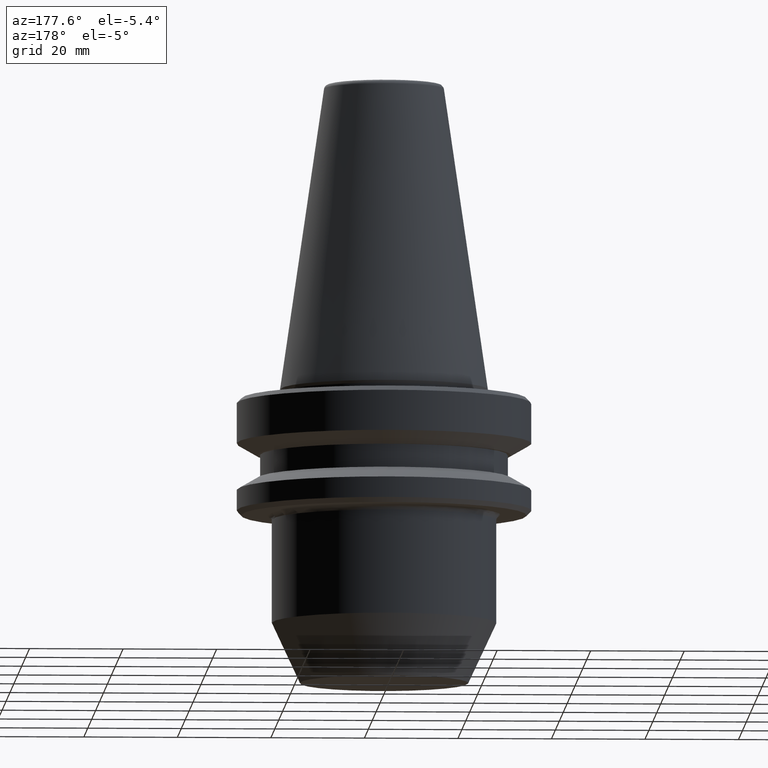
[diagram: clean part render]
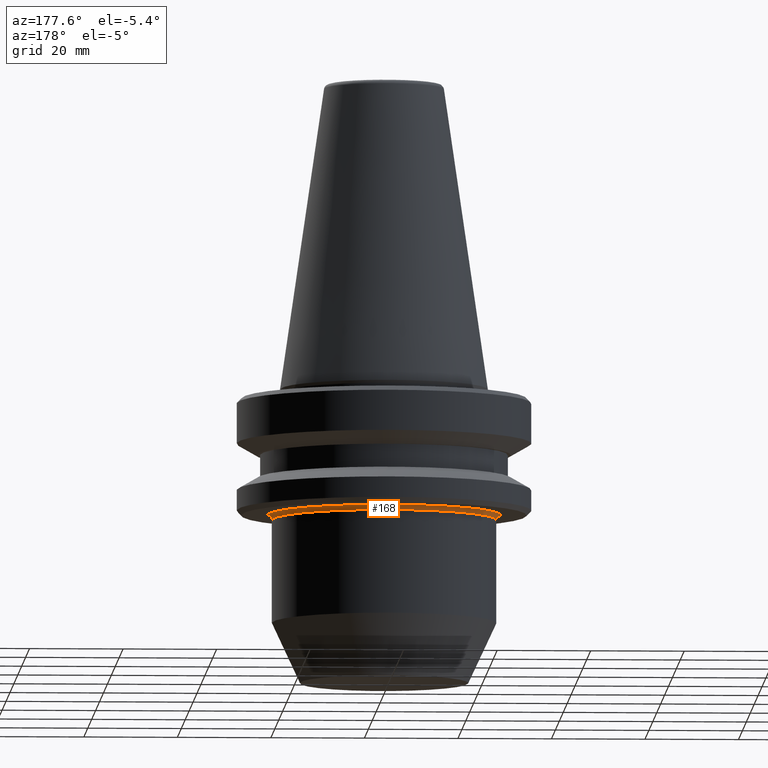
[diagram: same view with one face highlighted and labeled with its STEP entity id]
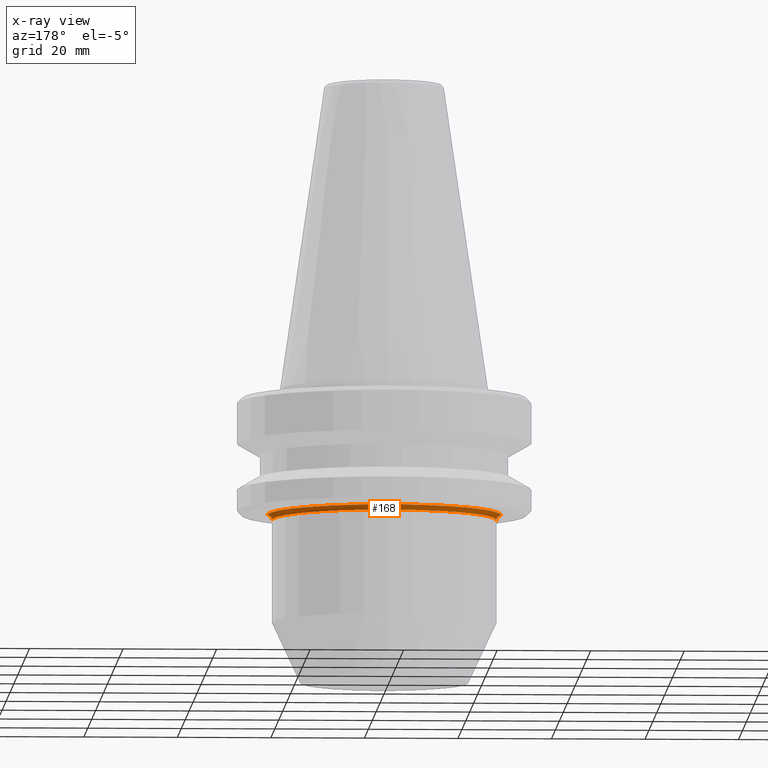
[diagram: x-ray of the same camera — body ghosted, the highlighted face saturated]
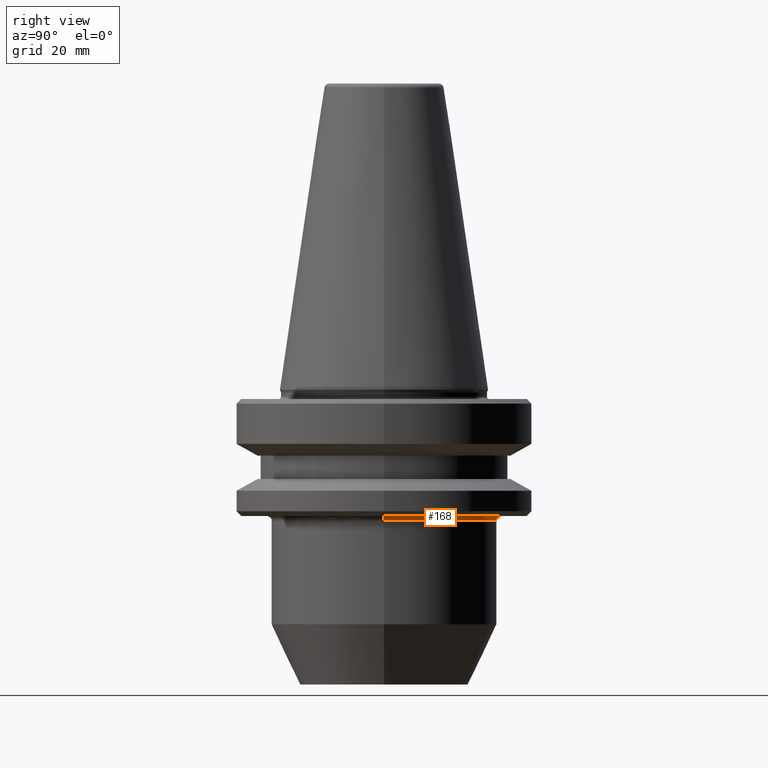
[diagram: same view with one face highlighted and labeled with its STEP entity id]
A machine part, auxiliary view. The second image highlights one B-rep face of the part: STEP entity #168.
The next image is the same camera in x-ray: the body ghosted, the highlighted face saturated — about 0% of this face is hidden behind the body in this view.
A second angle (right view) of the same face is appended — the face is thin or edge-on in the first view.
In plain terms, the highlighted toroidal blend (fillet) surface has major radius 25 mm and minor (blend) radius 1 mm.
Its self-contained STEP definition (entity closure, byte-faithful):
#36 = ORIENTED_EDGE ( 'NONE', *, *, #713, .F. ) ;
#51 = CARTESIAN_POINT ( 'NONE',  ( 25.00000000000000000, 0.0000000000000000000, -27.31128678844368800 ) ) ;
#61 = EDGE_CURVE ( 'NONE', #819, #943, #352, .T. ) ;
#87 = ORIENTED_EDGE ( 'NONE', *, *, #61, .T. ) ;
#108 = DIRECTION ( 'NONE',  ( -0.0000000000000000000, -0.0000000000000000000, 1.000000000000000000 ) ) ;
#160 = AXIS2_PLACEMENT_3D ( 'NONE', #767, #463, #992 ) ;
#168 = ADVANCED_FACE ( 'NONE', ( #722 ), #501, .F. ) ;
#174 = ORIENTED_EDGE ( 'NONE', *, *, #469, .F. ) ;
#195 = AXIS2_PLACEMENT_3D ( 'NONE', #553, #471, #613 ) ;
#198 = AXIS2_PLACEMENT_3D ( 'NONE', #51, #955, #971 ) ;
#320 = AXIS2_PLACEMENT_3D ( 'NONE', #566, #716, #459 ) ;
#325 = VERTEX_POINT ( 'NONE', #683 ) ;
#352 = CIRCLE ( 'NONE', #198, 1.000000000000000900 ) ;
#427 = CIRCLE ( 'NONE', #320, 1.000000000000000900 ) ;
#445 = ORIENTED_EDGE ( 'NONE', *, *, #778, .T. ) ;
#459 = DIRECTION ( 'NONE',  ( -1.000000000000000000, 1.224646799147357200E-016, 0.0000000000000000000 ) ) ;
#463 = DIRECTION ( 'NONE',  ( -0.0000000000000000000, -0.0000000000000000000, 1.000000000000000000 ) ) ;
#469 = EDGE_CURVE ( 'NONE', #644, #325, #427, .T. ) ;
#471 = DIRECTION ( 'NONE',  ( -0.0000000000000000000, -0.0000000000000000000, 1.000000000000000000 ) ) ;
#478 = AXIS2_PLACEMENT_3D ( 'NONE', #528, #108, #844 ) ;
#479 = CARTESIAN_POINT ( 'NONE',  ( 25.00000000000000000, 0.0000000000000000000, -26.31128678844368800 ) ) ;
#501 = TOROIDAL_SURFACE ( 'NONE', #478, 25.00000000000000000, 1.000000000000002700 ) ;
#512 = CIRCLE ( 'NONE', #160, 24.00000000000000000 ) ;
#528 = CARTESIAN_POINT ( 'NONE',  ( 0.0000000000000000000, 0.0000000000000000000, -27.31128678844368800 ) ) ;
#553 = CARTESIAN_POINT ( 'NONE',  ( 0.0000000000000000000, 0.0000000000000000000, -26.31128678844368800 ) ) ;
#566 = CARTESIAN_POINT ( 'NONE',  ( -25.00000000000000000, 3.061616997868383000E-015, -27.31128678844368800 ) ) ;
#613 = DIRECTION ( 'NONE',  ( 1.000000000000000000, 0.0000000000000000000, 0.0000000000000000000 ) ) ;
#644 = VERTEX_POINT ( 'NONE', #663 ) ;
#652 = CIRCLE ( 'NONE', #195, 25.00000000000000000 ) ;
#663 = CARTESIAN_POINT ( 'NONE',  ( -25.00000000000000000, 3.061616997868383000E-015, -26.31128678844368800 ) ) ;
#683 = CARTESIAN_POINT ( 'NONE',  ( -24.00000000000000000, 2.939152317953647900E-015, -27.31128678844368800 ) ) ;
#713 = EDGE_CURVE ( 'NONE', #819, #644, #652, .T. ) ;
#716 = DIRECTION ( 'NONE',  ( 1.224646799147353200E-016, 1.000000000000000000, 0.0000000000000000000 ) ) ;
#722 = FACE_OUTER_BOUND ( 'NONE', #909, .T. ) ;
#767 = CARTESIAN_POINT ( 'NONE',  ( 0.0000000000000000000, 0.0000000000000000000, -27.31128678844368800 ) ) ;
#778 = EDGE_CURVE ( 'NONE', #943, #325, #512, .T. ) ;
#819 = VERTEX_POINT ( 'NONE', #479 ) ;
#824 = CARTESIAN_POINT ( 'NONE',  ( 24.00000000000000000, 0.0000000000000000000, -27.31128678844368800 ) ) ;
#844 = DIRECTION ( 'NONE',  ( 1.000000000000000000, 0.0000000000000000000, 0.0000000000000000000 ) ) ;
#909 = EDGE_LOOP ( 'NONE', ( #174, #36, #87, #445 ) ) ;
#943 = VERTEX_POINT ( 'NONE', #824 ) ;
#955 = DIRECTION ( 'NONE',  ( 0.0000000000000000000, -1.000000000000000000, 0.0000000000000000000 ) ) ;
#971 = DIRECTION ( 'NONE',  ( 0.0000000000000000000, 0.0000000000000000000, -1.000000000000000000 ) ) ;
#992 = DIRECTION ( 'NONE',  ( 1.000000000000000000, 0.0000000000000000000, 0.0000000000000000000 ) ) ;